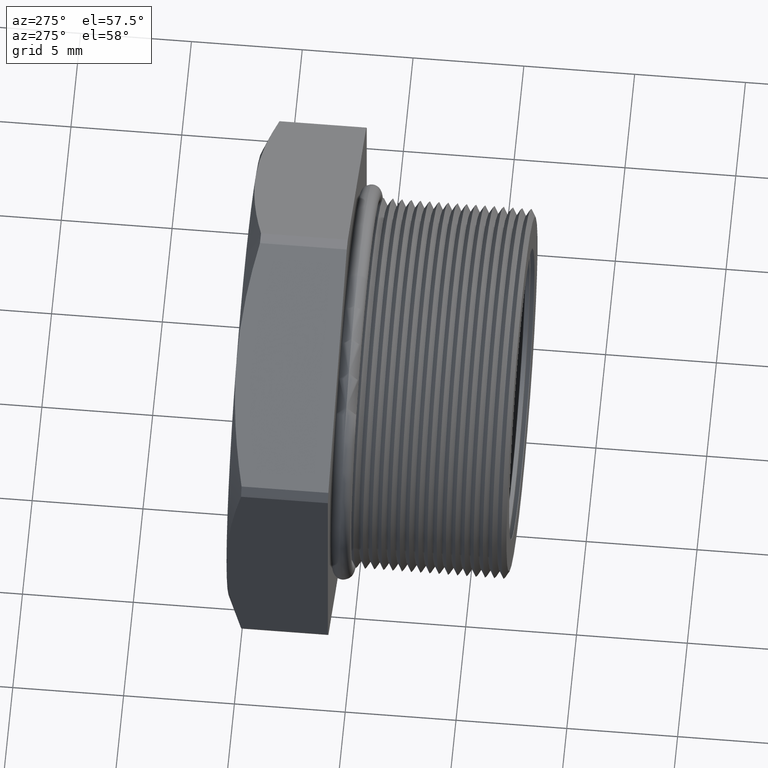
[diagram: clean part render]
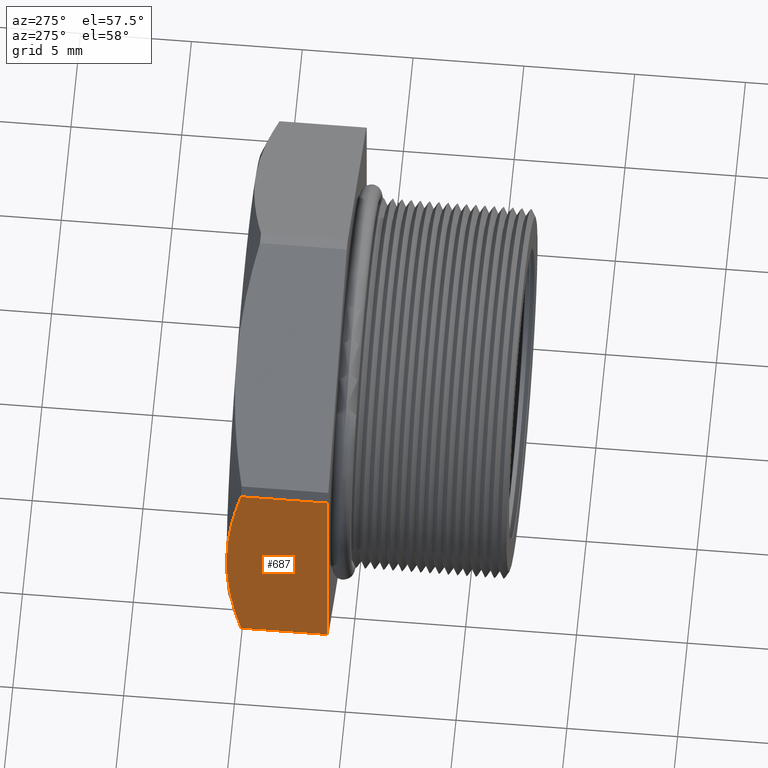
[diagram: same view with one face highlighted and labeled with its STEP entity id]
A machine part, auxiliary view. The second image highlights one B-rep face of the part: STEP entity #687.
In plain terms, the highlighted planar face has unit normal (-1, 0, 0).
Its self-contained STEP definition (entity closure, byte-faithful):
#661 = EDGE_CURVE ( 'NONE', #795, #804, #4027, .T. ) ;
#663 = ORIENTED_EDGE ( 'NONE', *, *, #661, .F. ) ;
#665 = ORIENTED_EDGE ( 'NONE', *, *, #803, .F. ) ;
#667 = EDGE_CURVE ( 'NONE', #729, #805, #4011, .T. ) ;
#668 = EDGE_CURVE ( 'NONE', #792, #729, #4056, .T. ) ;
#670 = ORIENTED_EDGE ( 'NONE', *, *, #667, .T. ) ;
#675 = ORIENTED_EDGE ( 'NONE', *, *, #668, .T. ) ;
#681 = ORIENTED_EDGE ( 'NONE', *, *, #794, .F. ) ;
#684 = EDGE_LOOP ( 'NONE', ( #681, #675, #670, #665, #663 ) ) ;
#687 = ADVANCED_FACE ( 'NONE', ( #4036 ), #4031, .T. ) ;
#729 = VERTEX_POINT ( 'NONE', #4145 ) ;
#792 = VERTEX_POINT ( 'NONE', #4258 ) ;
#794 = EDGE_CURVE ( 'NONE', #792, #795, #4252, .T. ) ;
#795 = VERTEX_POINT ( 'NONE', #4248 ) ;
#803 = EDGE_CURVE ( 'NONE', #804, #805, #4291, .T. ) ;
#804 = VERTEX_POINT ( 'NONE', #4287 ) ;
#805 = VERTEX_POINT ( 'NONE', #4286 ) ;
#4001 = CARTESIAN_POINT ( 'NONE',  ( -0.3949999999999999600, 0.3817680770869766300, -0.2162061284977833100 ) ) ;
#4002 = CARTESIAN_POINT ( 'NONE',  ( -0.3950000000000000200, 0.3897403225388041400, -0.1805985811599561400 ) ) ;
#4003 = CARTESIAN_POINT ( 'NONE',  ( -0.3949999999999999100, 0.3963013145267781900, -0.1444248888611776600 ) ) ;
#4004 = CARTESIAN_POINT ( 'NONE',  ( -0.3949999999999999600, 0.4052023163134752000, -0.07226241553488024800 ) ) ;
#4005 = CARTESIAN_POINT ( 'NONE',  ( -0.3949999999999999600, 0.4075548905829479700, -0.03614916028105719800 ) ) ;
#4006 = CARTESIAN_POINT ( 'NONE',  ( -0.3949999999999999600, 0.4075548905829479200, 0.0000000000000000000 ) ) ;
#4011 = B_SPLINE_CURVE_WITH_KNOTS ( 'NONE', 3,
 ( #4006, #4005, #4004, #4003, #4002, #4001 ),
 .UNSPECIFIED., .F., .F.,
 ( 4, 2, 4 ),
 ( 0.02782712707967794100, 0.03057070346960624000, 0.03331427985953454300 ),
 .UNSPECIFIED. ) ;
#4019 = DIRECTION ( 'NONE',  ( 0.0000000000000000000, 0.0000000000000000000, -1.000000000000000000 ) ) ;
#4020 = VECTOR ( 'NONE', #4019, 39.37007874015748100 ) ;
#4021 = CARTESIAN_POINT ( 'NONE',  ( -0.3949999999999999600, 0.2275548905829479800, 0.0000000000000000000 ) ) ;
#4027 = LINE ( 'NONE', #4021, #4020 ) ;
#4031 = PLANE ( 'NONE',  #4087 ) ;
#4036 = FACE_OUTER_BOUND ( 'NONE', #684, .T. ) ;
#4046 = CARTESIAN_POINT ( 'NONE',  ( -0.3949999999999999600, 0.4075548905829479200, 0.0000000000000000000 ) ) ;
#4047 = CARTESIAN_POINT ( 'NONE',  ( -0.3949999999999999600, 0.4075548905829479200, 0.03612961083331044800 ) ) ;
#4048 = CARTESIAN_POINT ( 'NONE',  ( -0.3949999999999999600, 0.4052039938632866500, 0.07229510109106211700 ) ) ;
#4049 = CARTESIAN_POINT ( 'NONE',  ( -0.3950000000000000200, 0.3984980868305411600, 0.1265918630045694500 ) ) ;
#4050 = CARTESIAN_POINT ( 'NONE',  ( -0.3950000000000000200, 0.3957301704791911200, 0.1447485127294761400 ) ) ;
#4051 = CARTESIAN_POINT ( 'NONE',  ( -0.3949999999999999100, 0.3893461227504151400, 0.1806917436682455600 ) ) ;
#4052 = CARTESIAN_POINT ( 'NONE',  ( -0.3949999999999999600, 0.3857298768067983800, 0.1985109920498441000 ) ) ;
#4053 = CARTESIAN_POINT ( 'NONE',  ( -0.3949999999999999600, 0.3817680770869766300, 0.2162061284977833100 ) ) ;
#4056 = B_SPLINE_CURVE_WITH_KNOTS ( 'NONE', 3,
 ( #4053, #4052, #4051, #4050, #4049, #4048, #4047, #4046 ),
 .UNSPECIFIED., .F., .F.,
 ( 4, 2, 2, 4 ),
 ( 0.02234294174929219600, 0.02371398808188863300, 0.02508503441448507000, 0.02782712707967794100 ),
 .UNSPECIFIED. ) ;
#4084 = DIRECTION ( 'NONE',  ( 0.0000000000000000000, 0.0000000000000000000, 1.000000000000000000 ) ) ;
#4085 = DIRECTION ( 'NONE',  ( -1.000000000000000000, 0.0000000000000000000, 0.0000000000000000000 ) ) ;
#4086 = CARTESIAN_POINT ( 'NONE',  ( -0.3949999999999999600, 0.4075548905829479700, 0.2280533563299023400 ) ) ;
#4087 = AXIS2_PLACEMENT_3D ( 'NONE', #4086, #4085, #4084 ) ;
#4145 = CARTESIAN_POINT ( 'NONE',  ( -0.3949999999999999600, 0.4075548905829479200, 0.0000000000000000000 ) ) ;
#4248 = CARTESIAN_POINT ( 'NONE',  ( -0.3949999999999999600, 0.2275548905829479800, 0.2162061284977833100 ) ) ;
#4249 = DIRECTION ( 'NONE',  ( -0.0000000000000000000, -1.000000000000000000, -0.0000000000000000000 ) ) ;
#4250 = VECTOR ( 'NONE', #4249, 39.37007874015748100 ) ;
#4251 = CARTESIAN_POINT ( 'NONE',  ( -0.3949999999999999600, 0.0000000000000000000, 0.2162061284977833100 ) ) ;
#4252 = LINE ( 'NONE', #4251, #4250 ) ;
#4258 = CARTESIAN_POINT ( 'NONE',  ( -0.3949999999999999600, 0.3817680770869766300, 0.2162061284977833100 ) ) ;
#4286 = CARTESIAN_POINT ( 'NONE',  ( -0.3949999999999999600, 0.3817680770869766300, -0.2162061284977833100 ) ) ;
#4287 = CARTESIAN_POINT ( 'NONE',  ( -0.3949999999999999600, 0.2275548905829479800, -0.2162061284977833100 ) ) ;
#4288 = DIRECTION ( 'NONE',  ( 0.0000000000000000000, 1.000000000000000000, 0.0000000000000000000 ) ) ;
#4289 = VECTOR ( 'NONE', #4288, 39.37007874015748100 ) ;
#4290 = CARTESIAN_POINT ( 'NONE',  ( -0.3949999999999999600, 0.0000000000000000000, -0.2162061284977833100 ) ) ;
#4291 = LINE ( 'NONE', #4290, #4289 ) ;